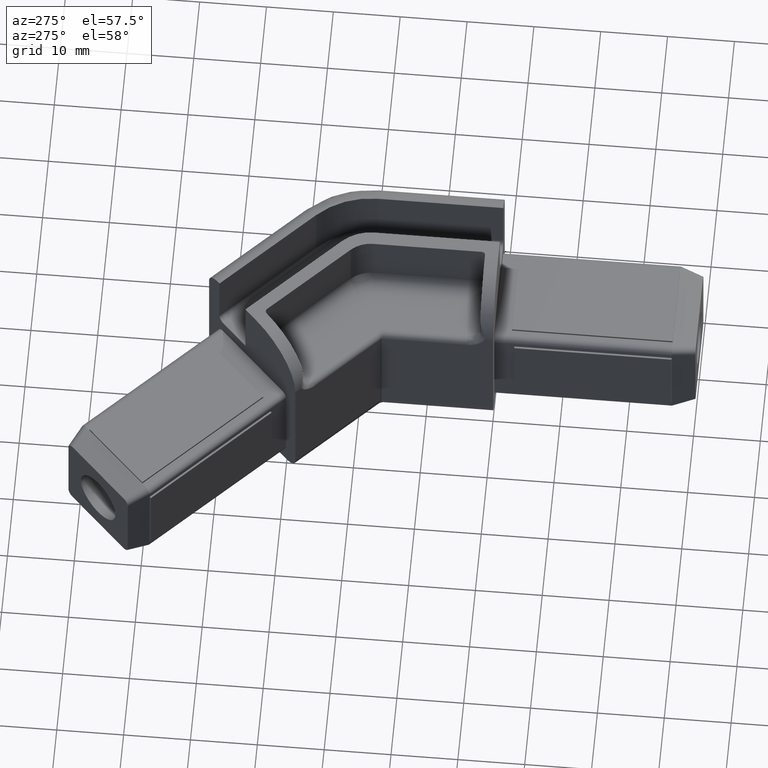
[diagram: clean part render]
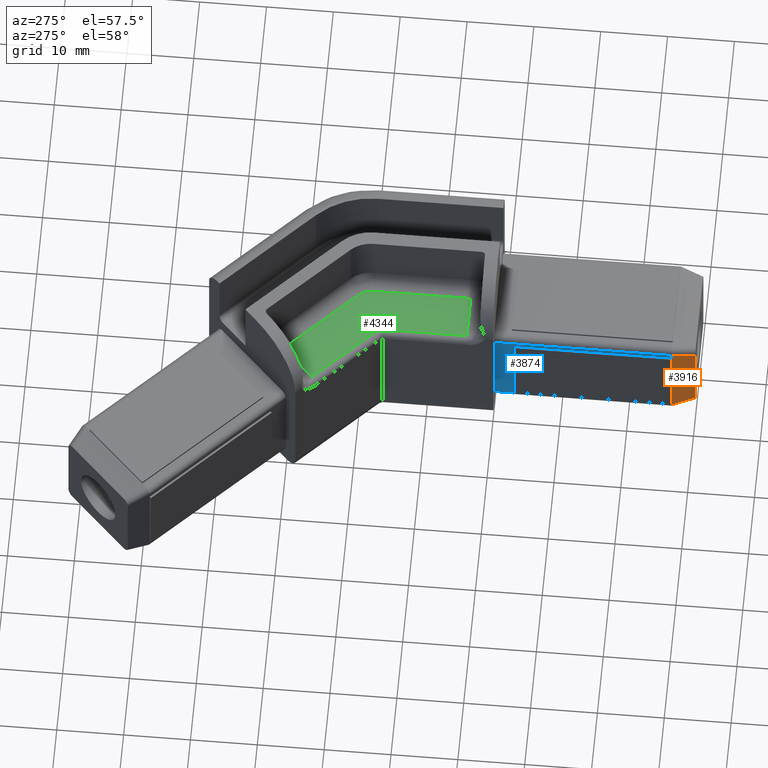
[diagram: same view with three faces highlighted in distinct colors, each labeled with its STEP entity id]
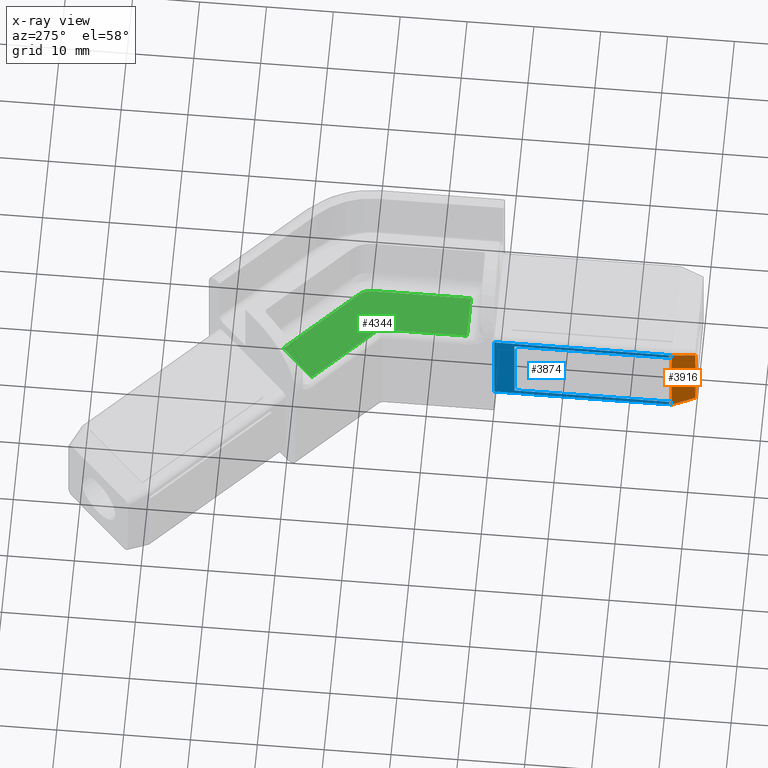
[diagram: x-ray of the same camera — body ghosted, the three highlighted faces saturated]
A machine part, auxiliary view with three faces highlighted in distinct colors.
The next image is the same camera in x-ray (body ghosted, the three faces saturated) — at least one of them is partly hidden behind the body in this view.
Their STEP definitions:

[orange] entity #3916 — the highlighted planar face has unit normal (-0.9659, -0.2588, -0).
#519=CARTESIAN_POINT('',(-7.800000000000410,3.470096189433448,6.100000000000491));
#520=VERTEX_POINT('',#519);
#591=CARTESIAN_POINT('',(-7.800000000000408,3.470096189433448,-6.099999999999938));
#592=VERTEX_POINT('',#591);
#628=CARTESIAN_POINT('',(-7.800000000000408,3.470096189433448,-6.099999999999940));
#629=DIRECTION('',(0.0,0.0,1.0));
#630=VECTOR('',#629,12.200000000000438);
#631=LINE('',#628,#630);
#632=EDGE_CURVE('',#592,#520,#631,.T.);
#3480=CARTESIAN_POINT('',(-7.799438299368602,3.467999894136604,-6.833512471651489));
#3481=VERTEX_POINT('',#3480);
#3492=CARTESIAN_POINT('',(-7.800000000000408,3.470096189433477,-6.800000000000254));
#3493=VERTEX_POINT('',#3492);
#3494=CARTESIAN_POINT('',(-6.800000000000410,-0.261954618135619,-6.800000000000254));
#3495=DIRECTION('',(0.965925826289063,0.258819045102542,1.182918E-016));
#3496=DIRECTION('',(0.258819045102542,-0.965925826289063,3.169619E-017));
#3497=AXIS2_PLACEMENT_3D('',#3494,#3495,#3496);
#3498=ELLIPSE('',#3497,3.863703305155954,1.0);
#3499=EDGE_CURVE('',#3481,#3493,#3498,.T.);
#3518=CARTESIAN_POINT('',(-6.870190526855594,-5.701935E-009,-5.904264721080154));
#3519=VERTEX_POINT('',#3518);
#3569=CARTESIAN_POINT('',(-6.870190528383319,0.0,5.904264718571795));
#3570=VERTEX_POINT('',#3569);
#3578=CARTESIAN_POINT('',(-6.870190528383318,0.0,-5.904264721080151));
#3579=DIRECTION('',(0.0,0.0,1.0));
#3580=VECTOR('',#3579,11.808529439651949);
#3581=LINE('',#3578,#3580);
#3582=EDGE_CURVE('',#3519,#3570,#3581,.T.);
#3597=CARTESIAN_POINT('',(-7.799438299368526,3.467999894136620,-6.833512471651488));
#3598=DIRECTION('',(0.250562807457164,-0.935113127917258,0.250562801540824));
#3599=VECTOR('',#3598,3.708642084367589);
#3600=LINE('',#3597,#3599);
#3601=EDGE_CURVE('',#3481,#3519,#3600,.T.);
#3621=CARTESIAN_POINT('',(-7.800000000000410,3.470096111297607,6.800000000000252));
#3622=VERTEX_POINT('',#3621);
#3629=CARTESIAN_POINT('',(-7.799438298643055,3.467999891429052,6.833512493287556));
#3630=VERTEX_POINT('',#3629);
#3631=CARTESIAN_POINT('',(-6.800000000000411,-0.261954618135619,6.800000000000252));
#3632=DIRECTION('',(-0.965925826289063,-0.258819045102542,-1.182918E-016));
#3633=DIRECTION('',(0.258819045102542,-0.965925826289063,3.169619E-017));
#3634=AXIS2_PLACEMENT_3D('',#3631,#3632,#3633);
#3635=ELLIPSE('',#3634,3.863703305155954,1.0);
#3636=EDGE_CURVE('',#3630,#3622,#3635,.T.);
#3683=CARTESIAN_POINT('',(-6.870190528383319,0.0,5.904264718571795));
#3684=DIRECTION('',(-0.250562807010317,0.935113126249495,0.250562808211846));
#3685=VECTOR('',#3684,3.708642081988876);
#3686=LINE('',#3683,#3685);
#3687=EDGE_CURVE('',#3570,#3630,#3686,.T.);
#3856=CARTESIAN_POINT('',(-7.800000000000410,3.470096189433448,6.100000000000498));
#3857=DIRECTION('',(0.0,0.0,1.0));
#3858=VECTOR('',#3857,0.699999999999754);
#3859=LINE('',#3856,#3858);
#3860=EDGE_CURVE('',#520,#3622,#3859,.T.);
#3865=CARTESIAN_POINT('',(-7.800000000000408,3.470096189433448,-6.800000000000254));
#3866=DIRECTION('',(0.0,0.0,1.0));
#3867=VECTOR('',#3866,0.700000000000314);
#3868=LINE('',#3865,#3867);
#3869=EDGE_CURVE('',#3493,#592,#3868,.T.);
#3901=CARTESIAN_POINT('',(-7.800000000000408,3.470096189433448,-7.800000000000254));
#3902=DIRECTION('',(-0.965925826289063,-0.258819045102542,-1.182918E-016));
#3903=DIRECTION('',(0.258819045102542,-0.965925826289063,3.169619E-017));
#3904=AXIS2_PLACEMENT_3D('',#3901,#3902,#3903);
#3905=PLANE('',#3904);
#3906=ORIENTED_EDGE('',*,*,#3869,.F.);
#3907=ORIENTED_EDGE('',*,*,#3499,.F.);
#3908=ORIENTED_EDGE('',*,*,#3601,.T.);
#3909=ORIENTED_EDGE('',*,*,#3582,.T.);
#3910=ORIENTED_EDGE('',*,*,#3687,.T.);
#3911=ORIENTED_EDGE('',*,*,#3636,.T.);
#3912=ORIENTED_EDGE('',*,*,#3860,.F.);
#3913=ORIENTED_EDGE('',*,*,#632,.F.);
#3914=EDGE_LOOP('',(#3906,#3907,#3908,#3909,#3910,#3911,#3912,#3913));
#3915=FACE_OUTER_BOUND('',#3914,.T.);
#3916=ADVANCED_FACE('',(#3915),#3905,.T.);

[blue] entity #3874 — the highlighted planar face has unit normal (-1, 0, 0).
#519=CARTESIAN_POINT('',(-7.800000000000410,3.470096189433448,6.100000000000491));
#520=VERTEX_POINT('',#519);
#529=CARTESIAN_POINT('',(-7.800000000000410,26.984271247459901,6.100000000000022));
#530=VERTEX_POINT('',#529);
#531=CARTESIAN_POINT('',(-7.800000000000410,3.470096189433445,6.100000000000494));
#532=DIRECTION('',(0.0,1.0,0.0));
#533=VECTOR('',#532,23.514175058026456);
#534=LINE('',#531,#533);
#535=EDGE_CURVE('',#520,#530,#534,.T.);
#560=CARTESIAN_POINT('',(-7.800000000000408,26.984271247459603,-6.099999999999384));
#561=VERTEX_POINT('',#560);
#562=CARTESIAN_POINT('',(-7.800000000000410,26.984271247459898,6.100000000000025));
#563=DIRECTION('',(0.0,0.0,-1.0));
#564=VECTOR('',#563,12.199999999999410);
#565=LINE('',#562,#564);
#566=EDGE_CURVE('',#530,#561,#565,.T.);
#591=CARTESIAN_POINT('',(-7.800000000000408,3.470096189433448,-6.099999999999938));
#592=VERTEX_POINT('',#591);
#593=CARTESIAN_POINT('',(-7.800000000000408,26.984271247459610,-6.099999999999382));
#594=DIRECTION('',(0.0,-1.0,0.0));
#595=VECTOR('',#594,23.514175058026161);
#596=LINE('',#593,#595);
#597=EDGE_CURVE('',#561,#592,#596,.T.);
#3405=CARTESIAN_POINT('',(-7.800000000000408,29.984271247463042,-6.800000000000254));
#3406=VERTEX_POINT('',#3405);
#3414=CARTESIAN_POINT('',(-7.800000000000410,29.984271247463042,6.800000000000252));
#3415=VERTEX_POINT('',#3414);
#3416=CARTESIAN_POINT('',(-7.800000000000408,29.984271247463042,-6.800000000000254));
#3417=DIRECTION('',(0.0,0.0,1.0));
#3418=VECTOR('',#3417,13.600000000000506);
#3419=LINE('',#3416,#3418);
#3420=EDGE_CURVE('',#3406,#3415,#3419,.T.);
#3492=CARTESIAN_POINT('',(-7.800000000000408,3.470096189433477,-6.800000000000254));
#3493=VERTEX_POINT('',#3492);
#3501=CARTESIAN_POINT('',(-7.800000000000408,29.984271247463042,-6.800000000000254));
#3502=DIRECTION('',(0.0,-1.0,0.0));
#3503=VECTOR('',#3502,26.514175058029576);
#3504=LINE('',#3501,#3503);
#3505=EDGE_CURVE('',#3406,#3493,#3504,.T.);
#3621=CARTESIAN_POINT('',(-7.800000000000410,3.470096111297607,6.800000000000252));
#3622=VERTEX_POINT('',#3621);
#3623=CARTESIAN_POINT('',(-7.800000000000410,29.984271247463042,6.800000000000252));
#3624=DIRECTION('',(0.0,-1.0,0.0));
#3625=VECTOR('',#3624,26.514175136165441);
#3626=LINE('',#3623,#3625);
#3627=EDGE_CURVE('',#3415,#3622,#3626,.T.);
#3849=CARTESIAN_POINT('',(-7.800000000000408,29.984271247463042,-7.800000000000254));
#3850=DIRECTION('',(-1.0,0.0,0.0));
#3851=DIRECTION('',(0.0,-1.0,0.0));
#3852=AXIS2_PLACEMENT_3D('',#3849,#3850,#3851);
#3853=PLANE('',#3852);
#3854=ORIENTED_EDGE('',*,*,#566,.F.);
#3855=ORIENTED_EDGE('',*,*,#535,.F.);
#3856=CARTESIAN_POINT('',(-7.800000000000410,3.470096189433448,6.100000000000498));
#3857=DIRECTION('',(0.0,0.0,1.0));
#3858=VECTOR('',#3857,0.699999999999754);
#3859=LINE('',#3856,#3858);
#3860=EDGE_CURVE('',#520,#3622,#3859,.T.);
#3861=ORIENTED_EDGE('',*,*,#3860,.T.);
#3862=ORIENTED_EDGE('',*,*,#3627,.F.);
#3863=ORIENTED_EDGE('',*,*,#3420,.F.);
#3864=ORIENTED_EDGE('',*,*,#3505,.T.);
#3865=CARTESIAN_POINT('',(-7.800000000000408,3.470096189433448,-6.800000000000254));
#3866=DIRECTION('',(0.0,0.0,1.0));
#3867=VECTOR('',#3866,0.700000000000314);
#3868=LINE('',#3865,#3867);
#3869=EDGE_CURVE('',#3493,#592,#3868,.T.);
#3870=ORIENTED_EDGE('',*,*,#3869,.T.);
#3871=ORIENTED_EDGE('',*,*,#597,.F.);
#3872=EDGE_LOOP('',(#3854,#3855,#3861,#3862,#3863,#3864,#3870,#3871));
#3873=FACE_OUTER_BOUND('',#3872,.T.);
#3874=ADVANCED_FACE('',(#3873),#3853,.T.);

[green] entity #4344 — the highlighted planar face has unit normal (0, 0, -1).
#1695=CARTESIAN_POINT('',(-2.399999999999865,48.771067811866772,9.999999999999844));
#1696=VERTEX_POINT('',#1695);
#1706=CARTESIAN_POINT('',(-2.400000000000092,33.984271247463042,9.999999999999844));
#1707=VERTEX_POINT('',#1706);
#1708=CARTESIAN_POINT('',(-2.399999999999865,48.771067811866772,9.999999999999844));
#1709=DIRECTION('',(0.0,-1.0,0.0));
#1710=VECTOR('',#1709,14.786796564403723);
#1711=LINE('',#1708,#1710);
#1712=EDGE_CURVE('',#1696,#1707,#1711,.T.);
#1781=CARTESIAN_POINT('',(-13.617366486000039,61.065389565902009,9.999999999999757));
#1782=VERTEX_POINT('',#1781);
#1794=CARTESIAN_POINT('',(-3.161522368399575,50.609545442436342,9.999999999999844));
#1795=VERTEX_POINT('',#1794);
#1796=CARTESIAN_POINT('',(-13.617366486000012,61.065389565902038,9.999999999999842));
#1797=DIRECTION('',(0.707106780988220,-0.707106781384875,1.201313E-016));
#1798=VECTOR('',#1797,14.786796561316851);
#1799=LINE('',#1796,#1798);
#1800=EDGE_CURVE('',#1782,#1795,#1799,.T.);
#1943=CARTESIAN_POINT('',(-5.000000000000228,48.771067811866772,9.999999999999844));
#1944=DIRECTION('',(1.224647E-016,0.0,-1.0));
#1945=DIRECTION('',(1.0,0.0,1.224647E-016));
#1946=AXIS2_PLACEMENT_3D('',#1943,#1944,#1945);
#1947=CIRCLE('',#1946,2.600000000000272);
#1948=EDGE_CURVE('',#1795,#1696,#1947,.T.);
#4193=CARTESIAN_POINT('',(-18.284271247106744,56.398484809481332,9.999999999999842));
#4194=VERTEX_POINT('',#4193);
#4202=CARTESIAN_POINT('',(-18.284271247106776,56.398484809481367,9.999999999999842));
#4203=DIRECTION('',(0.707106781541501,0.707106780831594,0.0));
#4204=VECTOR('',#4203,6.600000004147171);
#4205=LINE('',#4202,#4204);
#4206=EDGE_CURVE('',#4194,#1782,#4205,.T.);
#4290=CARTESIAN_POINT('',(-9.000000000000002,33.984271247463042,9.999999999999842));
#4291=VERTEX_POINT('',#4290);
#4292=CARTESIAN_POINT('',(-2.399999999999865,33.984271247463042,9.999999999999844));
#4293=DIRECTION('',(-1.0,0.0,0.0));
#4294=VECTOR('',#4293,6.600000000000136);
#4295=LINE('',#4292,#4294);
#4296=EDGE_CURVE('',#1707,#4291,#4295,.T.);
#4309=CARTESIAN_POINT('',(13.181992519370395,25.716492290417179,9.999999999999846));
#4310=DIRECTION('',(0.0,0.0,-1.0));
#4311=DIRECTION('',(-1.0,0.0,0.0));
#4312=AXIS2_PLACEMENT_3D('',#4309,#4310,#4311);
#4313=PLANE('',#4312);
#4314=ORIENTED_EDGE('',*,*,#4206,.F.);
#4315=CARTESIAN_POINT('',(-9.439339828220229,47.553553390594558,9.999999999999842));
#4316=VERTEX_POINT('',#4315);
#4317=CARTESIAN_POINT('',(-9.439339828220229,47.553553390594558,9.999999999999842));
#4318=DIRECTION('',(-0.707106781186537,0.707106781186558,-1.420106E-016));
#4319=VECTOR('',#4318,12.508621970849397);
#4320=LINE('',#4317,#4319);
#4321=EDGE_CURVE('',#4316,#4194,#4320,.T.);
#4322=ORIENTED_EDGE('',*,*,#4321,.F.);
#4323=CARTESIAN_POINT('',(-9.000000000000002,46.492893218814928,9.999999999999842));
#4324=VERTEX_POINT('',#4323);
#4325=CARTESIAN_POINT('',(-10.499999999999774,46.492893218814928,9.999999999999842));
#4326=DIRECTION('',(-1.224647E-016,0.0,1.0));
#4327=DIRECTION('',(-1.0,0.0,-1.224647E-016));
#4328=AXIS2_PLACEMENT_3D('',#4325,#4326,#4327);
#4329=CIRCLE('',#4328,1.499999999999808);
#4330=EDGE_CURVE('',#4324,#4316,#4329,.T.);
#4331=ORIENTED_EDGE('',*,*,#4330,.F.);
#4332=CARTESIAN_POINT('',(-9.000000000000002,33.984271247463042,9.999999999999842));
#4333=DIRECTION('',(0.0,1.0,0.0));
#4334=VECTOR('',#4333,12.508621971351886);
#4335=LINE('',#4332,#4334);
#4336=EDGE_CURVE('',#4291,#4324,#4335,.T.);
#4337=ORIENTED_EDGE('',*,*,#4336,.F.);
#4338=ORIENTED_EDGE('',*,*,#4296,.F.);
#4339=ORIENTED_EDGE('',*,*,#1712,.F.);
#4340=ORIENTED_EDGE('',*,*,#1948,.F.);
#4341=ORIENTED_EDGE('',*,*,#1800,.F.);
#4342=EDGE_LOOP('',(#4314,#4322,#4331,#4337,#4338,#4339,#4340,#4341));
#4343=FACE_OUTER_BOUND('',#4342,.T.);
#4344=ADVANCED_FACE('',(#4343),#4313,.F.);